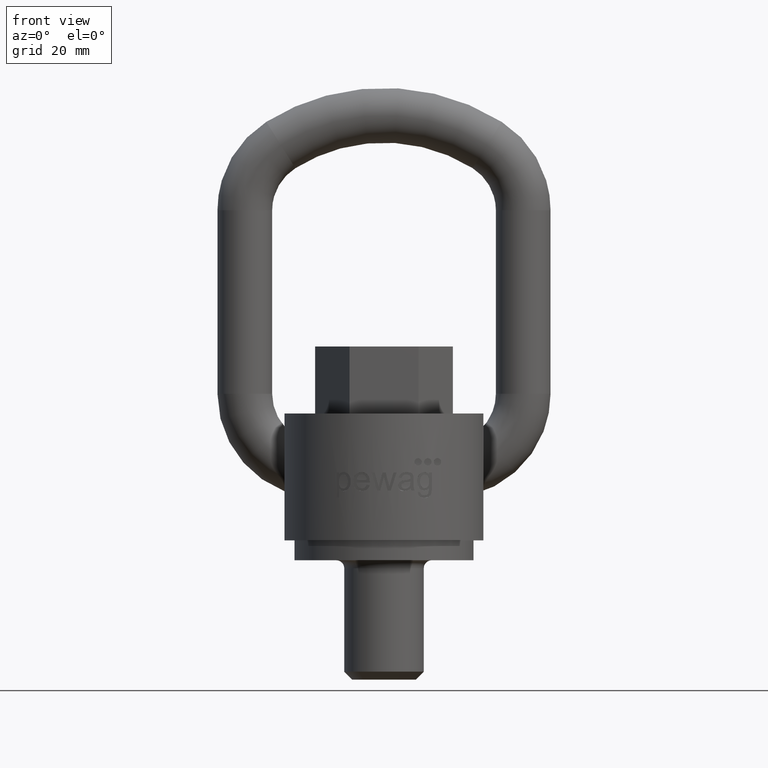
[diagram: clean part render]
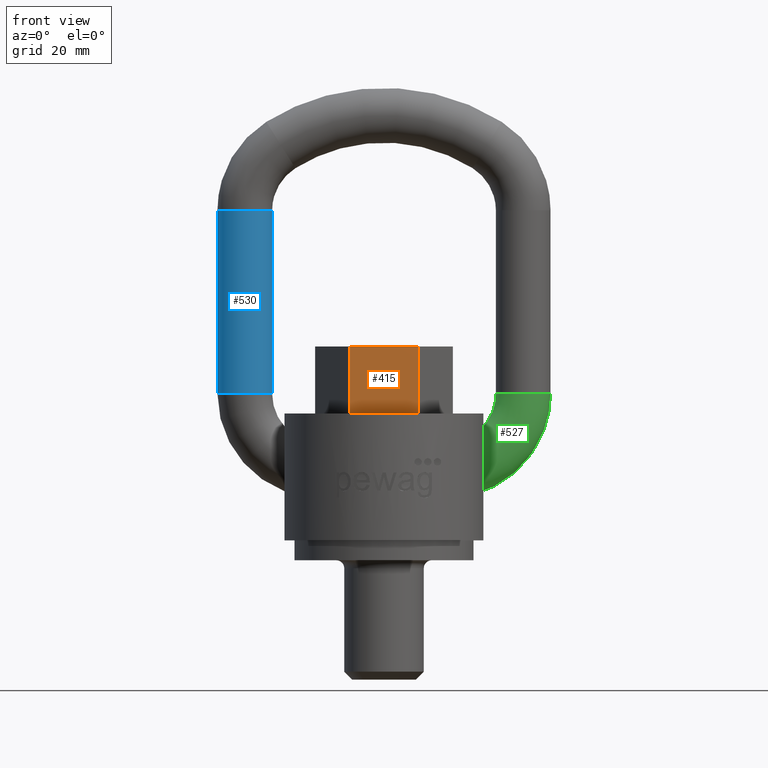
[diagram: same view with three faces highlighted in distinct colors, each labeled with its STEP entity id]
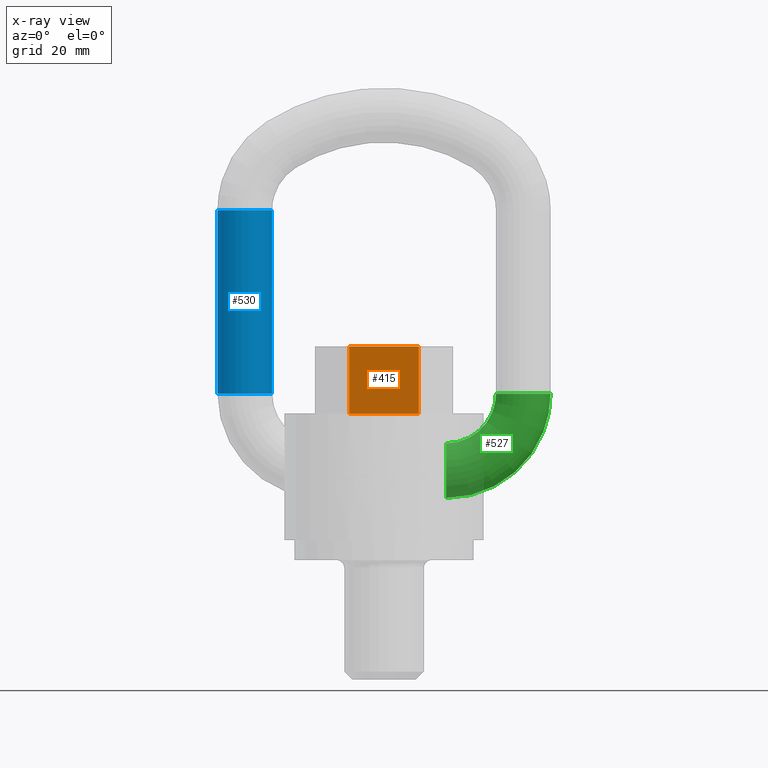
[diagram: x-ray of the same camera — body ghosted, the three highlighted faces saturated]
A machine part, front view with three faces highlighted in distinct colors.
The next image is the same camera in x-ray (body ghosted, the three faces saturated) — at least one of them is partly hidden behind the body in this view.
Their STEP definitions:

[orange] entity #415 — the highlighted planar face has unit normal (0, 1, 0).
#248=FACE_OUTER_BOUND('',#646,.T.);
#353=PLANE('',#2461);
#415=ADVANCED_FACE('',(#248),#353,.F.);
#646=EDGE_LOOP('',(#1228,#1229,#1230,#1231));
#804=LINE('',#3832,#930);
#805=LINE('',#3834,#931);
#808=LINE('',#3840,#934);
#809=LINE('',#3842,#935);
#930=VECTOR('',#2653,1.);
#931=VECTOR('',#2656,1.);
#934=VECTOR('',#2661,1.);
#935=VECTOR('',#2662,1.);
#1228=ORIENTED_EDGE('',*,*,#2027,.T.);
#1229=ORIENTED_EDGE('',*,*,#2031,.F.);
#1230=ORIENTED_EDGE('',*,*,#2032,.F.);
#1231=ORIENTED_EDGE('',*,*,#2028,.T.);
#1809=VERTEX_POINT('',#3823);
#1813=VERTEX_POINT('',#3831);
#1814=VERTEX_POINT('',#3835);
#1816=VERTEX_POINT('',#3841);
#2027=EDGE_CURVE('',#1809,#1813,#804,.T.);
#2028=EDGE_CURVE('',#1814,#1809,#805,.T.);
#2031=EDGE_CURVE('',#1816,#1813,#808,.T.);
#2032=EDGE_CURVE('',#1814,#1816,#809,.T.);
#2461=AXIS2_PLACEMENT_3D('',#3843,#2663,#2664);
#2653=DIRECTION('',(1.,-1.25192883228097E-16,0.));
#2656=DIRECTION('',(0.,0.,-1.));
#2661=DIRECTION('',(0.,0.,-1.));
#2662=DIRECTION('',(1.,-1.25192883228097E-16,0.));
#2663=DIRECTION('',(1.25192883228097E-16,1.,0.));
#2664=DIRECTION('',(-1.,1.2490009027033E-16,0.));
#3823=CARTESIAN_POINT('',(-6.92820323027551,-12.,25.5));
#3831=CARTESIAN_POINT('',(6.92820323027551,-12.,25.5));
#3832=CARTESIAN_POINT('',(-6.92820323027551,-12.,25.5));
#3834=CARTESIAN_POINT('',(-6.92820323027551,-12.,39.));
#3835=CARTESIAN_POINT('',(-6.92820323027551,-12.,39.));
#3840=CARTESIAN_POINT('',(6.92820323027551,-12.,39.));
#3841=CARTESIAN_POINT('',(6.92820323027551,-12.,39.));
#3842=CARTESIAN_POINT('',(-6.92820323027551,-12.,39.));
#3843=CARTESIAN_POINT('',(-6.92820323027551,-12.,39.));

[blue] entity #530 — the highlighted cylindrical surface (bore or boss wall) has radius 5.5 mm, axis along (-0, 0, -1).
#530=ADVANCED_FACE('',(#615,#616),#551,.T.);
#551=CYLINDRICAL_SURFACE('',#2542,5.5);
#615=FACE_BOUND('',#777,.T.);
#616=FACE_BOUND('',#778,.T.);
#777=EDGE_LOOP('',(#1718));
#778=EDGE_LOOP('',(#1719));
#1115=CIRCLE('',#2539,5.5);
#1116=CIRCLE('',#2541,5.5);
#1718=ORIENTED_EDGE('',*,*,#2238,.T.);
#1719=ORIENTED_EDGE('',*,*,#2237,.F.);
#1933=VERTEX_POINT('',#5187);
#1934=VERTEX_POINT('',#5190);
#2237=EDGE_CURVE('',#1933,#1933,#1115,.T.);
#2238=EDGE_CURVE('',#1934,#1934,#1116,.T.);
#2539=AXIS2_PLACEMENT_3D('',#5186,#2967,#2968);
#2541=AXIS2_PLACEMENT_3D('',#5189,#2971,#2972);
#2542=AXIS2_PLACEMENT_3D('',#5191,#2973,#2974);
#2967=DIRECTION('',(3.33066907387547E-16,0.,-1.));
#2968=DIRECTION('',(-1.,0.,-6.30808536718839E-16));
#2971=DIRECTION('',(3.33066907387547E-16,0.,-1.));
#2972=DIRECTION('',(-1.,0.,0.));
#2973=DIRECTION('',(-9.62801590771806E-17,0.,-1.));
#2974=DIRECTION('',(-1.,0.,0.));
#5186=CARTESIAN_POINT('',(-28.,19.,29.5));
#5187=CARTESIAN_POINT('',(-33.5,19.,29.5));
#5189=CARTESIAN_POINT('',(-28.,19.,66.3997487421324));
#5190=CARTESIAN_POINT('',(-33.5,19.,66.3997487421324));
#5191=CARTESIAN_POINT('',(-28.,19.,66.3997487421324));

[green] entity #527 — the highlighted toroidal blend (fillet) surface has major radius 15.5 mm and minor (blend) radius 5.5 mm.
#239=TOROIDAL_SURFACE('',#2536,15.5,5.5);
#527=ADVANCED_FACE('',(#609,#610),#239,.T.);
#609=FACE_BOUND('',#771,.T.);
#610=FACE_BOUND('',#772,.T.);
#771=EDGE_LOOP('',(#1712));
#772=EDGE_LOOP('',(#1713));
#1112=CIRCLE('',#2534,5.5);
#1113=CIRCLE('',#2535,5.5);
#1712=ORIENTED_EDGE('',*,*,#2234,.T.);
#1713=ORIENTED_EDGE('',*,*,#2235,.F.);
#1930=VERTEX_POINT('',#5179);
#1931=VERTEX_POINT('',#5181);
#2234=EDGE_CURVE('',#1930,#1930,#1112,.T.);
#2235=EDGE_CURVE('',#1931,#1931,#1113,.T.);
#2534=AXIS2_PLACEMENT_3D('',#5178,#2957,#2958);
#2535=AXIS2_PLACEMENT_3D('',#5180,#2959,#2960);
#2536=AXIS2_PLACEMENT_3D('',#5182,#2961,#2962);
#2957=DIRECTION('',(1.,0.,-1.72254642419883E-16));
#2958=DIRECTION('',(-3.1540426835942E-16,0.,-1.));
#2959=DIRECTION('',(6.77576192227313E-16,0.,1.));
#2960=DIRECTION('',(1.,0.,-6.30808536718839E-16));
#2961=DIRECTION('',(0.,-1.,0.));
#2962=DIRECTION('',(0.,0.,-1.));
#5178=CARTESIAN_POINT('',(12.5,19.,14.));
#5179=CARTESIAN_POINT('',(12.5,19.,8.5));
#5180=CARTESIAN_POINT('',(28.,19.,29.5));
#5181=CARTESIAN_POINT('',(33.5,19.,29.5));
#5182=CARTESIAN_POINT('',(12.5,19.,29.5));